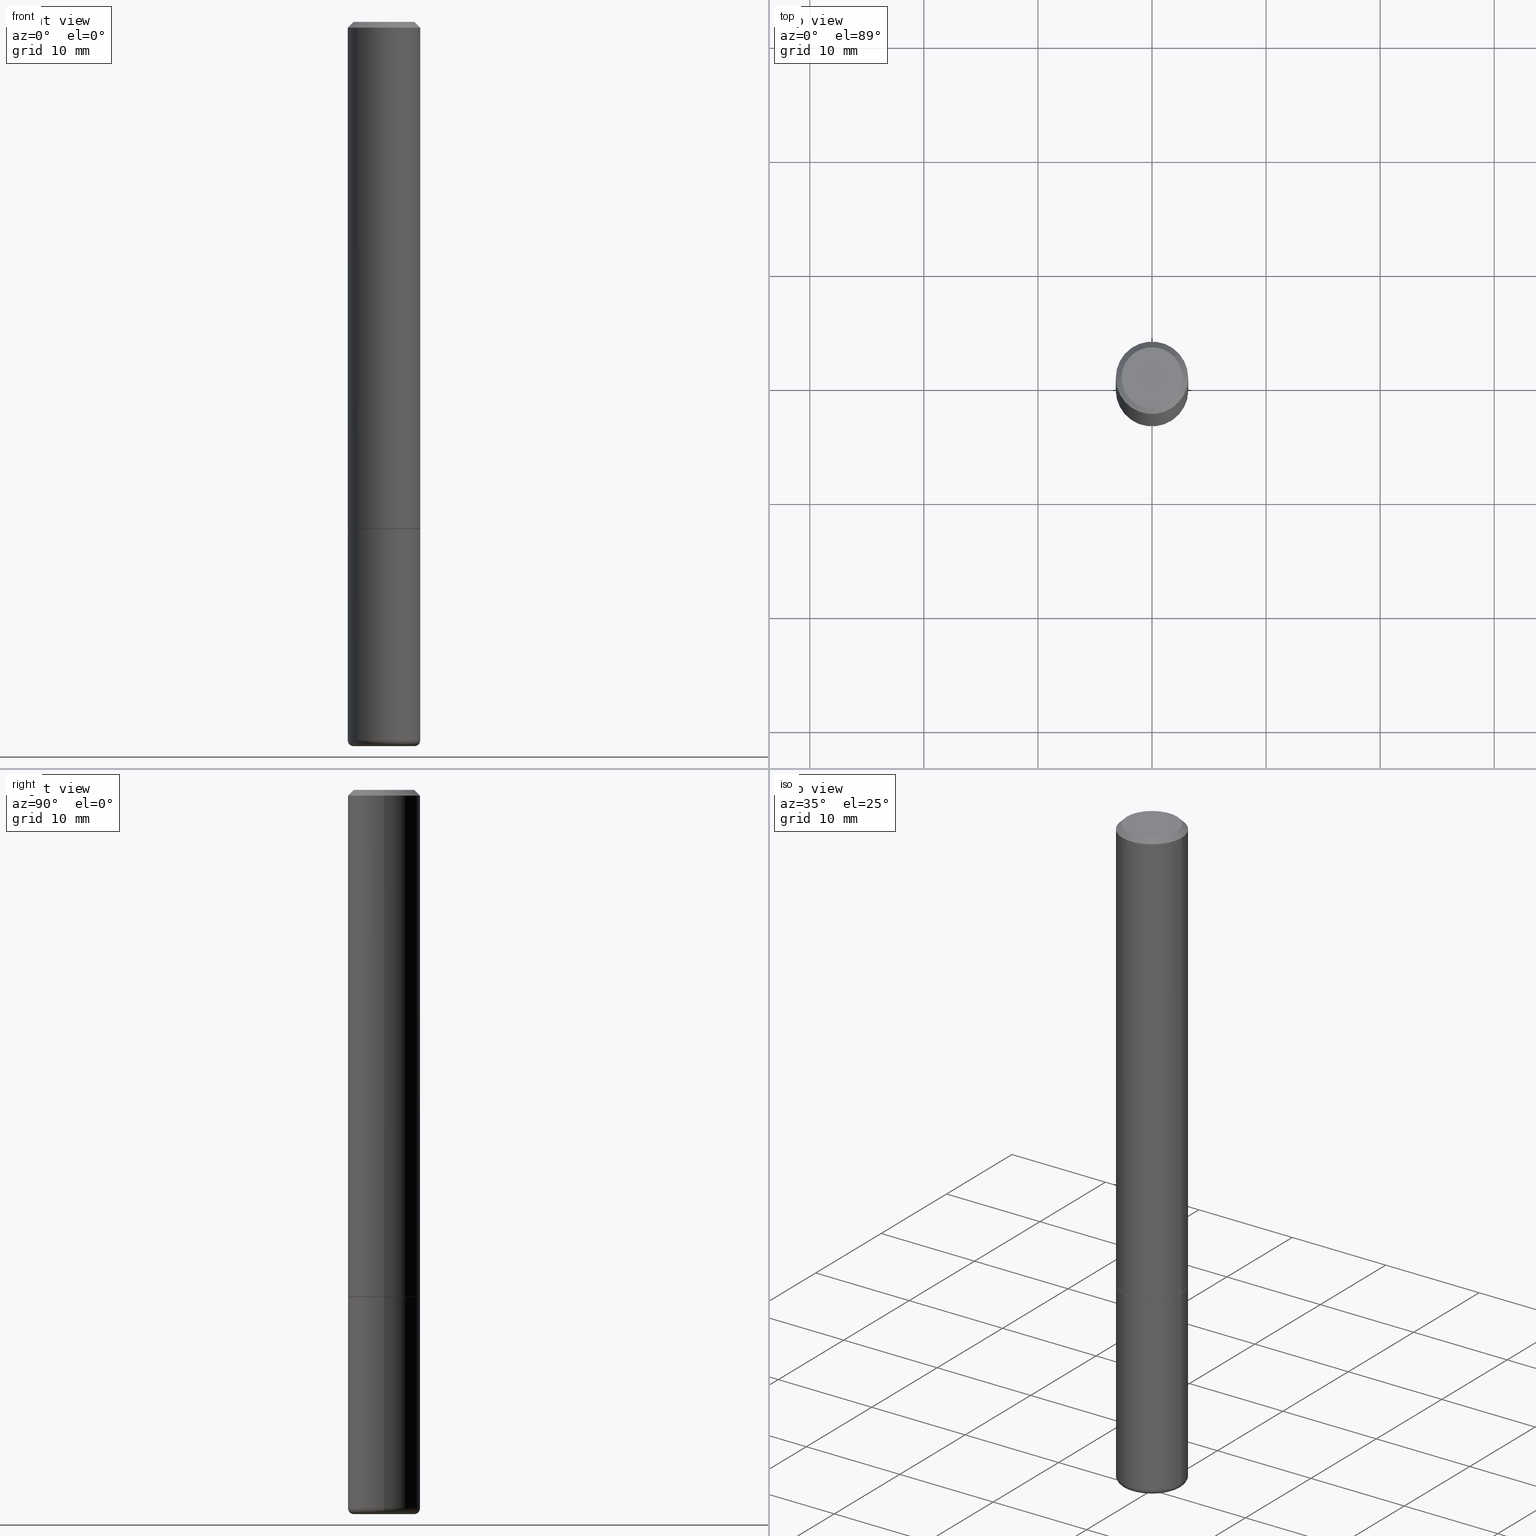
[diagram: canonical four-view strip — front | top / right | iso, engineering-drawing reading convention]
A machine part, canonical four-view strip (front | top / right | iso — engineering-drawing reading convention). The complete STEP part file that produces these views, byte-faithful:
ISO-10303-21;
HEADER;
FILE_DESCRIPTION (( 'STEP AP203' ),
    '1' );
FILE_NAME ('38021.STEP',
    '2023-03-22T20:13:57',
    ( '' ),
    ( '' ),
    'SwSTEP 2.0',
    'SolidWorks 2022',
    '' );
FILE_SCHEMA (( 'CONFIG_CONTROL_DESIGN' ));
ENDSEC;

DATA;
#1 = CARTESIAN_POINT ( 'NONE',  ( 0.000000000000000000, 0.000000000000000000, 0.000000000000000000 ) ) ;
#2 = DIRECTION ( 'NONE',  ( 1.000000000000000000, -6.982962677686266711E-15, 0.000000000000000000 ) ) ;
#3 = AXIS2_PLACEMENT_3D ( 'NONE', #326, #288, #373 ) ;
#4 = VERTEX_POINT ( 'NONE', #46 ) ;
#5 = CC_DESIGN_PERSON_AND_ORGANIZATION_ASSIGNMENT ( #285, #182, ( #99 ) ) ;
#6 = MANIFOLD_SOLID_BREP ( 'Body-Move/Copy2[2]', #78 ) ;
#7 = ORIENTED_EDGE ( 'NONE', *, *, #137, .T. ) ;
#8 = DATE_TIME_ROLE ( 'classification_date' ) ;
#9 = CIRCLE ( 'NONE', #126, 0.1250000000000002776 ) ;
#10 = EDGE_LOOP ( 'NONE', ( #343, #83 ) ) ;
#11 = DIRECTION ( 'NONE',  ( 7.105427357601001859E-15, 1.000000000000000000, -3.491481338843145583E-15 ) ) ;
#12 = ORIENTED_EDGE ( 'NONE', *, *, #283, .F. ) ;
#13 = COORDINATED_UNIVERSAL_TIME_OFFSET ( 5, 0, .BEHIND. ) ;
#14 = DIRECTION ( 'NONE',  ( 1.000000000000000000, -6.982962677686262766E-15, 0.000000000000000000 ) ) ;
#15 = EDGE_CURVE ( 'NONE', #69, #312, #394, .T. ) ;
#16 = DIRECTION ( 'NONE',  ( -2.445468806185136597E-29, 3.491481338843145583E-15, 1.000000000000000000 ) ) ;
#17 = ORIENTED_EDGE ( 'NONE', *, *, #332, .F. ) ;
#18 = DIRECTION ( 'NONE',  ( 1.000000000000000000, -6.982962677686262766E-15, 0.000000000000000000 ) ) ;
#19 = CONICAL_SURFACE ( 'NONE', #147, 0.1249999999999997641, 0.7853981633974471688 ) ;
#20 = DIRECTION ( 'NONE',  ( -0.7071067811865294761, 7.493145998870289474E-15, 0.7071067811865655584 ) ) ;
#21 = PLANE ( 'NONE',  #386 ) ;
#22 = PERSON_AND_ORGANIZATION ( #176, #395 ) ;
#23 = DIRECTION ( 'NONE',  ( -2.445468806185136597E-29, 3.491481338843145583E-15, 1.000000000000000000 ) ) ;
#24 = DIRECTION ( 'NONE',  ( -1.000000000000000000, 6.982962677686266711E-15, 0.000000000000000000 ) ) ;
#25 = CARTESIAN_POINT ( 'NONE',  ( -0.1249999999999999029, 8.881784197001245421E-16, -6.148668862818627323E-30 ) ) ;
#26 = DIRECTION ( 'NONE',  ( 1.000000000000000000, -6.982962677686271444E-15, 4.883557194083114022E-29 ) ) ;
#27 = CIRCLE ( 'NONE', #340, 0.1039532808751412185 ) ;
#28 = DIRECTION ( 'NONE',  ( -2.445468806185136597E-29, 3.491481338843145583E-15, 1.000000000000000000 ) ) ;
#29 = CARTESIAN_POINT ( 'NONE',  ( 7.332110811570563480E-16, 0.1049999999999997741, -3.644712843334792919E-16 ) ) ;
#30 = CARTESIAN_POINT ( 'NONE',  ( -0.1249999999999997641, 8.030407079339185615E-16, -0.02000000000000003858 ) ) ;
#31 = DIRECTION ( 'NONE',  ( 2.445468806185136597E-29, -3.491481338843145583E-15, -1.000000000000000000 ) ) ;
#32 = DIRECTION ( 'NONE',  ( -2.445468806185136597E-29, 3.491481338843145583E-15, 1.000000000000000000 ) ) ;
#33 = ORIENTED_EDGE ( 'NONE', *, *, #332, .T. ) ;
#34 = AXIS2_PLACEMENT_3D ( 'NONE', #1, #412, #273 ) ;
#35 = ORIENTED_EDGE ( 'NONE', *, *, #420, .T. ) ;
#36 = DIRECTION ( 'NONE',  ( -2.445468806185136597E-29, 3.491481338843145583E-15, 1.000000000000000000 ) ) ;
#37 = LOCAL_TIME ( 16, 13, 57.00000000000000000, #350 ) ;
#38 = EDGE_LOOP ( 'NONE', ( #194, #184, #7, #17 ) ) ;
#39 = APPROVAL_STATUS ( 'not_yet_approved' ) ;
#40 = ORIENTED_EDGE ( 'NONE', *, *, #349, .T. ) ;
#41 = CC_DESIGN_DATE_AND_TIME_ASSIGNMENT ( #146, #8, ( #241 ) ) ;
#42 = CALENDAR_DATE ( 2023, 22, 3 ) ;
#43 = AXIS2_PLACEMENT_3D ( 'NONE', #304, #435, #124 ) ;
#44 = APPROVAL_PERSON_ORGANIZATION ( #234, #315, #190 ) ;
#45 = TOROIDAL_SURFACE ( 'NONE', #358, 0.1050000000000000100, 0.02000000000000026409 ) ;
#46 = CARTESIAN_POINT ( 'NONE',  ( -0.1049999999999997741, 7.681258945454874055E-16, 4.268512490095161194E-18 ) ) ;
#47 = VERTEX_POINT ( 'NONE', #113 ) ;
#48 = CONICAL_SURFACE ( 'NONE', #131, 0.1239999999999999991, 0.7853981633974227439 ) ;
#49 = DATE_AND_TIME ( #361, #377 ) ;
#50 = VERTEX_POINT ( 'NONE', #236 ) ;
#51 = CARTESIAN_POINT ( 'NONE',  ( 6.064829667939290224E-29, -8.658969419407599059E-15, -2.480027409304907948 ) ) ;
#52 = ORIENTED_EDGE ( 'NONE', *, *, #306, .F. ) ;
#53 = FACE_OUTER_BOUND ( 'NONE', #348, .T. ) ;
#54 = PERSON_AND_ORGANIZATION ( #176, #395 ) ;
#55 = CARTESIAN_POINT ( 'NONE',  ( 4.279570410823989044E-29, -6.110092342975505460E-15, -1.750000000000000222 ) ) ;
#56 = FACE_OUTER_BOUND ( 'NONE', #111, .T. ) ;
#57 = CARTESIAN_POINT ( 'NONE',  ( 4.279570410823989044E-29, -6.110092342975505460E-15, -1.750000000000000222 ) ) ;
#58 = CARTESIAN_POINT ( 'NONE',  ( 4.279570410823989044E-29, -6.110092342975505460E-15, -1.750000000000000222 ) ) ;
#59 = EDGE_CURVE ( 'NONE', #249, #264, #429, .T. ) ;
#60 = PRODUCT ( '38021', '38021', '', ( #404 ) ) ;
#61 = DIRECTION ( 'NONE',  ( 1.000000000000000000, -6.982962677686266711E-15, 0.000000000000000000 ) ) ;
#62 = CARTESIAN_POINT ( 'NONE',  ( 4.248153437071916964E-19, -8.709681894338729074E-15, -2.494552039400148580 ) ) ;
#63 = DIRECTION ( 'NONE',  ( -2.445468806185136597E-29, 3.491481338843145583E-15, 1.000000000000000000 ) ) ;
#64 = CARTESIAN_POINT ( 'NONE',  ( -0.1039532808751412185, -7.880430930486362697E-15, -2.500000000000000000 ) ) ;
#65 = CARTESIAN_POINT ( 'NONE',  ( 0.1050000000000000100, -9.392180500564655802E-15, -2.480027409304907948 ) ) ;
#66 = UNCERTAINTY_MEASURE_WITH_UNIT (LENGTH_MEASURE( 1.000000000000000082E-05 ), #342, 'distance_accuracy_value', 'NONE');
#67 = VECTOR ( 'NONE', #92, 39.37007874015748143 ) ;
#68 = DIRECTION ( 'NONE',  ( 1.000000000000000000, -6.982962677686266711E-15, 4.876176775795935793E-29 ) ) ;
#69 = VERTEX_POINT ( 'NONE', #64 ) ;
#70 = ADVANCED_FACE ( 'NONE', ( #56 ), #207, .F. ) ;
#71 = VECTOR ( 'NONE', #417, 39.37007874015748143 ) ;
#72 = ORIENTED_EDGE ( 'NONE', *, *, #257, .F. ) ;
#73 = APPROVAL ( #118, 'UNSPECIFIED' ) ;
#74 = DIRECTION ( 'NONE',  ( 2.438088387897960049E-29, -3.491481338843145188E-15, -1.000000000000000000 ) ) ;
#75 = VERTEX_POINT ( 'NONE', #317 ) ;
#76 = ORIENTED_EDGE ( 'NONE', *, *, #150, .T. ) ;
#77 = CARTESIAN_POINT ( 'NONE',  ( -0.1250000000000001388, 8.881784197001262184E-16, -6.148668862818638533E-30 ) ) ;
#78 = CLOSED_SHELL ( 'NONE', ( #345, #399, #424, #419, #303, #351, #381, #103 ) ) ;
#79 = ORIENTED_EDGE ( 'NONE', *, *, #354, .F. ) ;
#80 = CIRCLE ( 'NONE', #43, 0.1039532808751412185 ) ;
#81 = AXIS2_PLACEMENT_3D ( 'NONE', #305, #16, #125 ) ;
#82 = CARTESIAN_POINT ( 'NONE',  ( 0.1039532808751412185, -9.454605227682013567E-15, -2.500000000000000000 ) ) ;
#83 = ORIENTED_EDGE ( 'NONE', *, *, #195, .F. ) ;
#84 = DIRECTION ( 'NONE',  ( 1.000000000000000000, -6.982962677686271444E-15, 4.883557194083114022E-29 ) ) ;
#85 = CARTESIAN_POINT ( 'NONE',  ( 0.1250000000000001388, -8.728703347107843249E-16, 6.095220969744926748E-30 ) ) ;
#86 = CIRCLE ( 'NONE', #227, 0.02000000000000026409 ) ;
#87 = CARTESIAN_POINT ( 'NONE',  ( 0.1239999999999999991, -6.975979715008602784E-15, -1.750000000000000222 ) ) ;
#88 = DIRECTION ( 'NONE',  ( 1.000000000000000000, -6.982962677686270655E-15, 0.000000000000000000 ) ) ;
#89 = CC_DESIGN_PERSON_AND_ORGANIZATION_ASSIGNMENT ( #22, #438, ( #60 ) ) ;
#90 = DIRECTION ( 'NONE',  ( -2.445468806185136877E-29, 3.491481338843145188E-15, 1.000000000000000000 ) ) ;
#91 = APPLICATION_CONTEXT ( 'configuration controlled 3d designs of mechanical parts and assemblies' ) ;
#92 = DIRECTION ( 'NONE',  ( -0.7071067811865466846, 2.468850131082247989E-15, -0.7071067811865483499 ) ) ;
#93 = FACE_OUTER_BOUND ( 'NONE', #413, .T. ) ;
#94 = CARTESIAN_POINT ( 'NONE',  ( -1.043851414335219820E-46, 1.490343170380447200E-32, 4.268512490100411279E-18 ) ) ;
#95 = AXIS2_PLACEMENT_3D ( 'NONE', #196, #440, #18 ) ;
#96 = PLANE ( 'NONE',  #275 ) ;
#97 = DIRECTION ( 'NONE',  ( 1.000000000000000000, -6.982962677686239889E-15, 0.000000000000000000 ) ) ;
#98 = ORIENTED_EDGE ( 'NONE', *, *, #367, .T. ) ;
#99 = PRODUCT_DEFINITION_FORMATION_WITH_SPECIFIED_SOURCE ( 'ANY', '', #60, .NOT_KNOWN. ) ;
#100 = VERTEX_POINT ( 'NONE', #319 ) ;
#101 = CARTESIAN_POINT ( 'NONE',  ( 0.000000000000000000, 0.000000000000000000, 0.000000000000000000 ) ) ;
#102 = ORIENTED_EDGE ( 'NONE', *, *, #15, .T. ) ;
#103 = ADVANCED_FACE ( 'NONE', ( #307 ), #96, .F. ) ;
#104 = ORIENTED_EDGE ( 'NONE', *, *, #391, .T. ) ;
#105 = PERSON_AND_ORGANIZATION_ROLE ( 'classification_officer' ) ;
#106 = SECURITY_CLASSIFICATION_LEVEL ( 'unclassified' ) ;
#107 = ORIENTED_EDGE ( 'NONE', *, *, #117, .T. ) ;
#108 = AXIS2_PLACEMENT_3D ( 'NONE', #169, #437, #127 ) ;
#109 = DATE_AND_TIME ( #421, #322 ) ;
#110 = LINE ( 'NONE', #262, #230 ) ;
#111 = EDGE_LOOP ( 'NONE', ( #428, #33 ) ) ;
#112 = CARTESIAN_POINT ( 'NONE',  ( 6.064829667939290224E-29, -8.658969419407599059E-15, -2.480027409304907948 ) ) ;
#113 = CARTESIAN_POINT ( 'NONE',  ( -0.1249999999999997641, 8.030407079339185615E-16, -0.02000000000000003858 ) ) ;
#114 = EDGE_LOOP ( 'NONE', ( #76, #327, #79, #314 ) ) ;
#115 = CARTESIAN_POINT ( 'NONE',  ( 0.1250000000000000278, -6.979471196347445792E-15, -1.749000000000000110 ) ) ;
#116 = VECTOR ( 'NONE', #369, 39.37007874015748143 ) ;
#117 = EDGE_CURVE ( 'NONE', #287, #69, #110, .T. ) ;
#118 = APPROVAL_STATUS ( 'not_yet_approved' ) ;
#119 = LINE ( 'NONE', #128, #172 ) ;
#120 = ORIENTED_EDGE ( 'NONE', *, *, #137, .F. ) ;
#121 = CARTESIAN_POINT ( 'NONE',  ( 6.064829667939290224E-29, -8.658969419407599059E-15, -2.480027409304907948 ) ) ;
#122 = DIRECTION ( 'NONE',  ( -2.445468806185136597E-29, 3.491481338843145583E-15, 1.000000000000000000 ) ) ;
#123 = CC_DESIGN_PERSON_AND_ORGANIZATION_ASSIGNMENT ( #254, #105, ( #241 ) ) ;
#124 = DIRECTION ( 'NONE',  ( 1.000000000000000000, -6.982962677686269077E-15, 0.000000000000000000 ) ) ;
#125 = DIRECTION ( 'NONE',  ( 1.000000000000000000, -6.982962677686266711E-15, 4.876176775795935793E-29 ) ) ;
#126 = AXIS2_PLACEMENT_3D ( 'NONE', #296, #237, #432 ) ;
#127 = DIRECTION ( 'NONE',  ( -1.000000000000000000, 6.982962677686266711E-15, 0.000000000000000000 ) ) ;
#128 = CARTESIAN_POINT ( 'NONE',  ( -0.1239999999999999991, -5.229019350632981236E-15, -1.750000000000000222 ) ) ;
#129 = DIMENSIONAL_EXPONENTS ( 1.000000000000000000, 0.000000000000000000, 0.000000000000000000, 0.000000000000000000, 0.000000000000000000, 0.000000000000000000, 0.000000000000000000 ) ;
#130 = FACE_OUTER_BOUND ( 'NONE', #38, .T. ) ;
#131 = AXIS2_PLACEMENT_3D ( 'NONE', #57, #170, #374 ) ;
#132 = CIRCLE ( 'NONE', #346, 0.1249999999999997641 ) ;
#133 = CC_DESIGN_APPROVAL ( #315, ( #229 ) ) ;
#134 = CARTESIAN_POINT ( 'NONE',  ( 0.1049999999999997741, -8.238720831321559881E-16, 4.268512490105855498E-18 ) ) ;
#135 = VERTEX_POINT ( 'NONE', #82 ) ;
#136 = ADVANCED_FACE ( 'NONE', ( #235 ), #188, .F. ) ;
#137 = EDGE_CURVE ( 'NONE', #75, #249, #156, .T. ) ;
#138 = EDGE_LOOP ( 'NONE', ( #360, #107, #218 ) ) ;
#139 = CC_DESIGN_DATE_AND_TIME_ASSIGNMENT ( #365, #333, ( #229 ) ) ;
#140 = CLOSED_SHELL ( 'NONE', ( #136, #311, #178, #70, #270, #318, #247 ) ) ;
#141 = DATE_AND_TIME ( #42, #161 ) ;
#142 = APPLICATION_PROTOCOL_DEFINITION ( 'international standard', 'config_control_design', 1994, #418 ) ;
#143 = EDGE_CURVE ( 'NONE', #75, #312, #9, .T. ) ;
#144 = EDGE_LOOP ( 'NONE', ( #258, #223, #278, #52 ) ) ;
#145 = EDGE_CURVE ( 'NONE', #274, #100, #119, .T. ) ;
#146 = DATE_AND_TIME ( #282, #37 ) ;
#147 = AXIS2_PLACEMENT_3D ( 'NONE', #157, #31, #213 ) ;
#148 = EDGE_LOOP ( 'NONE', ( #392, #104, #216, #120 ) ) ;
#149 = COORDINATED_UNIVERSAL_TIME_OFFSET ( 5, 0, .BEHIND. ) ;
#150 = EDGE_CURVE ( 'NONE', #192, #274, #371, .T. ) ;
#151 = CIRCLE ( 'NONE', #95, 0.1250000000000000000 ) ;
#152 = PERSON_AND_ORGANIZATION ( #176, #395 ) ;
#153 = DIRECTION ( 'NONE',  ( -2.438088387897960049E-29, 3.491481338843145188E-15, 1.000000000000000000 ) ) ;
#154 = EDGE_LOOP ( 'NONE', ( #293, #425, #252, #363 ) ) ;
#155 = COORDINATED_UNIVERSAL_TIME_OFFSET ( 5, 0, .BEHIND. ) ;
#156 = LINE ( 'NONE', #85, #376 ) ;
#157 = CARTESIAN_POINT ( 'NONE',  ( 4.890937612370282792E-31, -6.982962677686303935E-17, -0.02000000000000003858 ) ) ;
#158 = ORIENTED_EDGE ( 'NONE', *, *, #384, .F. ) ;
#159 = DIRECTION ( 'NONE',  ( 0.000000000000000000, 0.000000000000000000, 1.000000000000000000 ) ) ;
#160 = CARTESIAN_POINT ( 'NONE',  ( 4.279570410823989044E-29, -6.110092342975505460E-15, -1.750000000000000222 ) ) ;
#161 = LOCAL_TIME ( 16, 13, 57.00000000000000000, #149 ) ;
#162 = DIRECTION ( 'NONE',  ( 1.000000000000000000, -6.982962677686270655E-15, 0.000000000000000000 ) ) ;
#163 = LINE ( 'NONE', #202, #439 ) ;
#164 = APPLICATION_PROTOCOL_DEFINITION ( 'international standard', 'config_control_design', 1994, #91 ) ;
#165 = LINE ( 'NONE', #87, #253 ) ;
#166 = DIRECTION ( 'NONE',  ( -2.445468806185136597E-29, 3.491481338843145583E-15, 1.000000000000000000 ) ) ;
#167 = DIRECTION ( 'NONE',  ( -1.000000000000000000, 6.982962677686265922E-15, -4.876176775795935793E-29 ) ) ;
#168 = EDGE_CURVE ( 'NONE', #4, #47, #301, .T. ) ;
#169 = CARTESIAN_POINT ( 'NONE',  ( 1.023786486538663119E-27, -1.461695771243838175E-13, -41.86463077955762913 ) ) ;
#170 = DIRECTION ( 'NONE',  ( -2.445468806185136597E-29, 3.491481338843145583E-15, 1.000000000000000000 ) ) ;
#171 = PRODUCT_DEFINITION_SHAPE ( 'NONE', 'NONE',  #229 ) ;
#172 = VECTOR ( 'NONE', #20, 39.37007874015748143 ) ;
#173 = APPROVAL_PERSON_ORGANIZATION ( #280, #211, #353 ) ;
#174 = CARTESIAN_POINT ( 'NONE',  ( 4.890937612370282792E-31, -6.982962677686303935E-17, -0.02000000000000003858 ) ) ;
#175 = FACE_OUTER_BOUND ( 'NONE', #279, .T. ) ;
#176 = PERSON ( 'UNSPECIFIED', 'UNSPECIFIED', 'UNSPECIFIED', ('UNSPECIFIED'), ('UNSPECIFIED'), ('UNSPECIFIED') ) ;
#177 = CARTESIAN_POINT ( 'NONE',  ( 4.277124942017804562E-29, -6.106600861636661664E-15, -1.749000000000000110 ) ) ;
#178 = ADVANCED_FACE ( 'NONE', ( #434 ), #242, .T. ) ;
#179 = VECTOR ( 'NONE', #191, 39.37007874015748143 ) ;
#180 = CYLINDRICAL_SURFACE ( 'NONE', #34, 0.1250000000000001388 ) ;
#181 = COORDINATED_UNIVERSAL_TIME_OFFSET ( 5, 0, .BEHIND. ) ;
#182 = PERSON_AND_ORGANIZATION_ROLE ( 'creator' ) ;
#183 = CARTESIAN_POINT ( 'NONE',  ( 0.1249999999999997641, -9.273918764983027713E-16, -0.02000000000000003858 ) ) ;
#184 = ORIENTED_EDGE ( 'NONE', *, *, #384, .T. ) ;
#185 = ORIENTED_EDGE ( 'NONE', *, *, #240, .T. ) ;
#186 = EDGE_CURVE ( 'NONE', #192, #347, #165, .T. ) ;
#187 = ORIENTED_EDGE ( 'NONE', *, *, #354, .T. ) ;
#188 = CONICAL_SURFACE ( 'NONE', #331, 751.2258538476612557, 1.518436449235073260 ) ;
#189 = CIRCLE ( 'NONE', #246, 0.1250000000000000278 ) ;
#190 = APPROVAL_ROLE ( '' ) ;
#191 = DIRECTION ( 'NONE',  ( -2.445468806185136877E-29, 3.491481338843145188E-15, 1.000000000000000000 ) ) ;
#192 = VERTEX_POINT ( 'NONE', #238 ) ;
#193 = CYLINDRICAL_SURFACE ( 'NONE', #81, 0.1249999999999999029 ) ;
#194 = ORIENTED_EDGE ( 'NONE', *, *, #391, .F. ) ;
#195 = EDGE_CURVE ( 'NONE', #274, #192, #430, .T. ) ;
#196 = CARTESIAN_POINT ( 'NONE',  ( 4.279570410823989044E-29, -6.110092342975505460E-15, -1.750000000000000222 ) ) ;
#197 = DIRECTION ( 'NONE',  ( -0.9986295347545742773, 6.790662755453664522E-15, -0.05233595624293731902 ) ) ;
#198 = DIRECTION ( 'NONE',  ( 1.000000000000000000, 0.000000000000000000, 0.000000000000000000 ) ) ;
#199 = CC_DESIGN_APPROVAL ( #73, ( #99 ) ) ;
#200 = CONICAL_SURFACE ( 'NONE', #108, 751.2258538476612557, 1.518436449235073260 ) ;
#201 = DIRECTION ( 'NONE',  ( 2.445468806185136597E-29, -3.491481338843145583E-15, -1.000000000000000000 ) ) ;
#202 = CARTESIAN_POINT ( 'NONE',  ( 0.1249999999999999029, -8.728703347107826486E-16, 6.095220969744914837E-30 ) ) ;
#203 = DIRECTION ( 'NONE',  ( -2.445468806185136597E-29, 3.491481338843145583E-15, 1.000000000000000000 ) ) ;
#204 = DIRECTION ( 'NONE',  ( 1.000000000000000000, -6.982962677686265922E-15, 4.876176775795935793E-29 ) ) ;
#205 = AXIS2_PLACEMENT_3D ( 'NONE', #94, #215, #277 ) ;
#206 = CARTESIAN_POINT ( 'NONE',  ( 8.728703347108260359E-16, 0.1249999999999938799, -1.750000000000000666 ) ) ;
#207 = PLANE ( 'NONE',  #219 ) ;
#208 = CARTESIAN_POINT ( 'NONE',  ( 0.000000000000000000, 0.000000000000000000, 0.000000000000000000 ) ) ;
#209 = LENGTH_MEASURE_WITH_UNIT ( LENGTH_MEASURE( 0.02539999999999999897 ), #276 );
#210 = DIRECTION ( 'NONE',  ( -6.982962677686266711E-15, -1.000000000000000000, 3.491481338843145583E-15 ) ) ;
#211 = APPROVAL ( #39, 'UNSPECIFIED' ) ;
#212 = APPROVAL_PERSON_ORGANIZATION ( #54, #73, #401 ) ;
#213 = DIRECTION ( 'NONE',  ( -1.000000000000000000, 6.982962677686266711E-15, 0.000000000000000000 ) ) ;
#214 = DIRECTION ( 'NONE',  ( -1.000000000000000000, 6.982962677686266711E-15, 0.000000000000000000 ) ) ;
#215 = DIRECTION ( 'NONE',  ( -2.445468806185136597E-29, 3.491481338843145583E-15, 1.000000000000000000 ) ) ;
#216 = ORIENTED_EDGE ( 'NONE', *, *, #59, .F. ) ;
#217 = AXIS2_PLACEMENT_3D ( 'NONE', #441, #268, #402 ) ;
#218 = ORIENTED_EDGE ( 'NONE', *, *, #225, .F. ) ;
#219 = AXIS2_PLACEMENT_3D ( 'NONE', #206, #408, #167 ) ;
#220 = CC_DESIGN_PERSON_AND_ORGANIZATION_ASSIGNMENT ( #423, #316, ( #99 ) ) ;
#221 = AXIS2_PLACEMENT_3D ( 'NONE', #372, #269, #61 ) ;
#222 = AXIS2_PLACEMENT_3D ( 'NONE', #112, #122, #88 ) ;
#223 = ORIENTED_EDGE ( 'NONE', *, *, #195, .T. ) ;
#224 = ORIENTED_EDGE ( 'NONE', *, *, #240, .F. ) ;
#225 = EDGE_CURVE ( 'NONE', #135, #69, #80, .T. ) ;
#226 = TOROIDAL_SURFACE ( 'NONE', #390, 0.1050000000000000100, 0.02000000000000026409 ) ;
#227 = AXIS2_PLACEMENT_3D ( 'NONE', #65, #210, #97 ) ;
#228 = ORIENTED_EDGE ( 'NONE', *, *, #117, .F. ) ;
#229 = PRODUCT_DEFINITION ( 'UNKNOWN', '', #99, #341 ) ;
#230 = VECTOR ( 'NONE', #197, 39.37007874015748854 ) ;
#231 = CARTESIAN_POINT ( 'NONE',  ( 4.279570410823989044E-29, -6.110092342975505460E-15, -1.750000000000000222 ) ) ;
#232 = AXIS2_PLACEMENT_3D ( 'NONE', #58, #203, #334 ) ;
#233 = CONICAL_SURFACE ( 'NONE', #431, 0.1249999999999997641, 0.7853981633974471688 ) ;
#234 = PERSON_AND_ORGANIZATION ( #176, #395 ) ;
#235 = FACE_OUTER_BOUND ( 'NONE', #320, .T. ) ;
#236 = CARTESIAN_POINT ( 'NONE',  ( 0.1249999999999997641, -9.273918764983027713E-16, -0.02000000000000003858 ) ) ;
#237 = DIRECTION ( 'NONE',  ( -2.445468806185136597E-29, 3.491481338843145583E-15, 1.000000000000000000 ) ) ;
#238 = CARTESIAN_POINT ( 'NONE',  ( 0.1239999999999999991, -6.975979715008602784E-15, -1.750000000000000222 ) ) ;
#239 = LINE ( 'NONE', #77, #116 ) ;
#240 = EDGE_CURVE ( 'NONE', #50, #47, #355, .T. ) ;
#241 = SECURITY_CLASSIFICATION ( '', '', #106 ) ;
#242 = CYLINDRICAL_SURFACE ( 'NONE', #217, 0.1250000000000001388 ) ;
#243 = CIRCLE ( 'NONE', #205, 0.1049999999999997741 ) ;
#244 = CC_DESIGN_PERSON_AND_ORGANIZATION_ASSIGNMENT ( #152, #426, ( #229 ) ) ;
#245 = AXIS2_PLACEMENT_3D ( 'NONE', #231, #325, #14 ) ;
#246 = AXIS2_PLACEMENT_3D ( 'NONE', #330, #166, #427 ) ;
#247 = ADVANCED_FACE ( 'NONE', ( #337 ), #200, .F. ) ;
#248 = CARTESIAN_POINT ( 'NONE',  ( -0.1250000000000000000, -6.496352461491424661E-15, -1.750000000000000222 ) ) ;
#249 = VERTEX_POINT ( 'NONE', #272 ) ;
#250 = DIRECTION ( 'NONE',  ( 1.000000000000000000, -6.982962677686269077E-15, 0.000000000000000000 ) ) ;
#251 = ORIENTED_EDGE ( 'NONE', *, *, #283, .T. ) ;
#252 = ORIENTED_EDGE ( 'NONE', *, *, #168, .T. ) ;
#253 = VECTOR ( 'NONE', #368, 39.37007874015748143 ) ;
#254 = PERSON_AND_ORGANIZATION ( #176, #395 ) ;
#255 =( GEOMETRIC_REPRESENTATION_CONTEXT ( 3 ) GLOBAL_UNCERTAINTY_ASSIGNED_CONTEXT ( ( #66 ) ) GLOBAL_UNIT_ASSIGNED_CONTEXT ( ( #342, #344, #380 ) ) REPRESENTATION_CONTEXT ( 'NONE', 'WORKASPACE' ) );
#256 = APPROVAL_DATE_TIME ( #109, #211 ) ;
#257 = EDGE_CURVE ( 'NONE', #47, #50, #132, .T. ) ;
#258 = ORIENTED_EDGE ( 'NONE', *, *, #145, .F. ) ;
#259 = EDGE_CURVE ( 'NONE', #135, #75, #86, .T. ) ;
#260 = CARTESIAN_POINT ( 'NONE',  ( -0.1050000000000000100, -7.912899546859493990E-15, -2.480027409304907948 ) ) ;
#261 = APPROVAL_DATE_TIME ( #141, #73 ) ;
#262 = CARTESIAN_POINT ( 'NONE',  ( -4.248153435851846603E-19, -8.709681894338729074E-15, -2.494552039400148580 ) ) ;
#263 = EDGE_LOOP ( 'NONE', ( #187, #397, #224, #382 ) ) ;
#264 = VERTEX_POINT ( 'NONE', #248 ) ;
#265 = CC_DESIGN_SECURITY_CLASSIFICATION ( #241, ( #99 ) ) ;
#266 = VERTEX_POINT ( 'NONE', #134 ) ;
#267 = AXIS2_PLACEMENT_3D ( 'NONE', #177, #310, #250 ) ;
#268 = DIRECTION ( 'NONE',  ( -2.445468806185136597E-29, 3.491481338843145583E-15, 1.000000000000000000 ) ) ;
#269 = DIRECTION ( 'NONE',  ( -2.445468806185136597E-29, 3.491481338843145583E-15, 1.000000000000000000 ) ) ;
#270 = ADVANCED_FACE ( 'NONE', ( #130 ), #180, .T. ) ;
#271 = DIRECTION ( 'NONE',  ( -2.445468806185136597E-29, 3.491481338843145583E-15, 1.000000000000000000 ) ) ;
#272 = CARTESIAN_POINT ( 'NONE',  ( 0.1250000000000000000, -6.982962677686288010E-15, -1.750000000000000222 ) ) ;
#273 = DIRECTION ( 'NONE',  ( 1.000000000000000000, -6.982962677686266711E-15, 4.876176775795935793E-29 ) ) ;
#274 = VERTEX_POINT ( 'NONE', #406 ) ;
#275 = AXIS2_PLACEMENT_3D ( 'NONE', #29, #74, #286 ) ;
#276 =( LENGTH_UNIT ( ) NAMED_UNIT ( * ) SI_UNIT ( $, .METRE. ) );
#277 = DIRECTION ( 'NONE',  ( 1.000000000000000000, -6.982962677686265922E-15, 4.876206205277404679E-29 ) ) ;
#278 = ORIENTED_EDGE ( 'NONE', *, *, #186, .T. ) ;
#279 = EDGE_LOOP ( 'NONE', ( #359, #102, #298, #289 ) ) ;
#280 = PERSON_AND_ORGANIZATION ( #176, #395 ) ;
#281 = LINE ( 'NONE', #183, #71 ) ;
#282 = CALENDAR_DATE ( 2023, 22, 3 ) ;
#283 = EDGE_CURVE ( 'NONE', #266, #4, #243, .T. ) ;
#284 = ORIENTED_EDGE ( 'NONE', *, *, #306, .T. ) ;
#285 = PERSON_AND_ORGANIZATION ( #176, #395 ) ;
#286 = DIRECTION ( 'NONE',  ( -1.000000000000000000, 6.982962677686265922E-15, -4.876176775795935793E-29 ) ) ;
#287 = VERTEX_POINT ( 'NONE', #410 ) ;
#288 = DIRECTION ( 'NONE',  ( -2.445468806185136597E-29, 3.491481338843145583E-15, 1.000000000000000000 ) ) ;
#289 = ORIENTED_EDGE ( 'NONE', *, *, #259, .F. ) ;
#290 = CIRCLE ( 'NONE', #267, 0.1250000000000000278 ) ;
#291 = APPROVAL_DATE_TIME ( #49, #315 ) ;
#292 = LINE ( 'NONE', #62, #308 ) ;
#293 = ORIENTED_EDGE ( 'NONE', *, *, #420, .F. ) ;
#294 = DIRECTION ( 'NONE',  ( 1.000000000000000000, -6.982962677686270655E-15, 0.000000000000000000 ) ) ;
#295 = MANIFOLD_SOLID_BREP ( 'Body-Move/Copy2[1]', #140 ) ;
#296 = CARTESIAN_POINT ( 'NONE',  ( 6.064829667939290224E-29, -8.658969419407599059E-15, -2.480027409304907948 ) ) ;
#297 = FACE_OUTER_BOUND ( 'NONE', #263, .T. ) ;
#298 = ORIENTED_EDGE ( 'NONE', *, *, #143, .F. ) ;
#299 = LOCAL_TIME ( 16, 13, 57.00000000000000000, #155 ) ;
#300 = DIRECTION ( 'NONE',  ( 1.000000000000000000, -6.982962677686269077E-15, 0.000000000000000000 ) ) ;
#301 = LINE ( 'NONE', #30, #67 ) ;
#302 = CARTESIAN_POINT ( 'NONE',  ( 4.279570410823989044E-29, -6.110092342975505460E-15, -1.750000000000000222 ) ) ;
#303 = ADVANCED_FACE ( 'NONE', ( #339 ), #379, .T. ) ;
#304 = CARTESIAN_POINT ( 'NONE',  ( 6.113672015462842613E-29, -8.728703347107864943E-15, -2.500000000000000000 ) ) ;
#305 = CARTESIAN_POINT ( 'NONE',  ( 0.000000000000000000, 0.000000000000000000, 0.000000000000000000 ) ) ;
#306 = EDGE_CURVE ( 'NONE', #100, #347, #290, .T. ) ;
#307 = FACE_OUTER_BOUND ( 'NONE', #415, .T. ) ;
#308 = VECTOR ( 'NONE', #436, 39.37007874015748854 ) ;
#309 = DIRECTION ( 'NONE',  ( 2.445468806185136597E-29, -3.491481338843145583E-15, -1.000000000000000000 ) ) ;
#310 = DIRECTION ( 'NONE',  ( -2.445468806185136597E-29, 3.491481338843145583E-15, 1.000000000000000000 ) ) ;
#311 = ADVANCED_FACE ( 'NONE', ( #175 ), #45, .T. ) ;
#312 = VERTEX_POINT ( 'NONE', #442 ) ;
#313 = AXIS2_PLACEMENT_3D ( 'NONE', #55, #329, #162 ) ;
#314 = ORIENTED_EDGE ( 'NONE', *, *, #186, .F. ) ;
#315 = APPROVAL ( #324, 'UNSPECIFIED' ) ;
#316 = PERSON_AND_ORGANIZATION_ROLE ( 'design_supplier' ) ;
#317 = CARTESIAN_POINT ( 'NONE',  ( 0.1250000000000002776, -9.531839754118383976E-15, -2.480027409304907948 ) ) ;
#318 = ADVANCED_FACE ( 'NONE', ( #53 ), #226, .T. ) ;
#319 = CARTESIAN_POINT ( 'NONE',  ( -0.1250000000000000278, -2.200036824506634488E-15, -1.749000000000000110 ) ) ;
#320 = EDGE_LOOP ( 'NONE', ( #228, #422, #383 ) ) ;
#321 = ORIENTED_EDGE ( 'NONE', *, *, #366, .T. ) ;
#322 = LOCAL_TIME ( 16, 13, 57.00000000000000000, #181 ) ;
#323 = DIRECTION ( 'NONE',  ( -1.000000000000000000, 7.105427357601027102E-15, 0.000000000000000000 ) ) ;
#324 = APPROVAL_STATUS ( 'not_yet_approved' ) ;
#325 = DIRECTION ( 'NONE',  ( -2.445468806185136597E-29, 3.491481338843145583E-15, 1.000000000000000000 ) ) ;
#326 = CARTESIAN_POINT ( 'NONE',  ( -1.043851414335219820E-46, 1.490343170380447200E-32, 4.268512490100411279E-18 ) ) ;
#327 = ORIENTED_EDGE ( 'NONE', *, *, #145, .T. ) ;
#328 = CALENDAR_DATE ( 2023, 22, 3 ) ;
#329 = DIRECTION ( 'NONE',  ( -2.445468806185136597E-29, 3.491481338843145583E-15, 1.000000000000000000 ) ) ;
#330 = CARTESIAN_POINT ( 'NONE',  ( 4.277124942017804562E-29, -6.106600861636661664E-15, -1.749000000000000110 ) ) ;
#331 = AXIS2_PLACEMENT_3D ( 'NONE', #338, #201, #24 ) ;
#332 = EDGE_CURVE ( 'NONE', #264, #249, #151, .T. ) ;
#333 = DATE_TIME_ROLE ( 'creation_date' ) ;
#334 = DIRECTION ( 'NONE',  ( 1.000000000000000000, -6.982962677686270655E-15, 0.000000000000000000 ) ) ;
#335 = DIRECTION ( 'NONE',  ( -2.445468806185136877E-29, 3.491481338843145188E-15, 1.000000000000000000 ) ) ;
#336 = FACE_OUTER_BOUND ( 'NONE', #114, .T. ) ;
#337 = FACE_OUTER_BOUND ( 'NONE', #138, .T. ) ;
#338 = CARTESIAN_POINT ( 'NONE',  ( 1.023786486538663119E-27, -1.461695771243838175E-13, -41.86463077955762913 ) ) ;
#339 = FACE_OUTER_BOUND ( 'NONE', #357, .T. ) ;
#340 = AXIS2_PLACEMENT_3D ( 'NONE', #398, #23, #300 ) ;
#341 = DESIGN_CONTEXT ( 'detailed design', #91, 'design' ) ;
#342 =( CONVERSION_BASED_UNIT ( 'INCH', #209 ) LENGTH_UNIT ( ) NAMED_UNIT ( #129 ) );
#343 = ORIENTED_EDGE ( 'NONE', *, *, #150, .F. ) ;
#344 =( NAMED_UNIT ( * ) PLANE_ANGLE_UNIT ( ) SI_UNIT ( $, .RADIAN. ) );
#345 = ADVANCED_FACE ( 'NONE', ( #336 ), #352, .T. ) ;
#346 = AXIS2_PLACEMENT_3D ( 'NONE', #405, #36, #2 ) ;
#347 = VERTEX_POINT ( 'NONE', #115 ) ;
#348 = EDGE_LOOP ( 'NONE', ( #389, #40, #387, #158 ) ) ;
#349 = EDGE_CURVE ( 'NONE', #69, #135, #27, .T. ) ;
#350 = COORDINATED_UNIVERSAL_TIME_OFFSET ( 5, 0, .BEHIND. ) ;
#351 = ADVANCED_FACE ( 'NONE', ( #364 ), #48, .T. ) ;
#352 = CONICAL_SURFACE ( 'NONE', #407, 0.1239999999999999991, 0.7853981633974227439 ) ;
#353 = APPROVAL_ROLE ( '' ) ;
#354 = EDGE_CURVE ( 'NONE', #347, #100, #189, .T. ) ;
#355 = CIRCLE ( 'NONE', #221, 0.1249999999999997641 ) ;
#356 = AXIS2_PLACEMENT_3D ( 'NONE', #208, #159, #198 ) ;
#357 = EDGE_LOOP ( 'NONE', ( #433, #284, #321, #72 ) ) ;
#358 = AXIS2_PLACEMENT_3D ( 'NONE', #51, #271, #84 ) ;
#359 = ORIENTED_EDGE ( 'NONE', *, *, #225, .T. ) ;
#360 = ORIENTED_EDGE ( 'NONE', *, *, #378, .F. ) ;
#361 = CALENDAR_DATE ( 2023, 22, 3 ) ;
#362 = FACE_OUTER_BOUND ( 'NONE', #10, .T. ) ;
#363 = ORIENTED_EDGE ( 'NONE', *, *, #257, .T. ) ;
#364 = FACE_OUTER_BOUND ( 'NONE', #144, .T. ) ;
#365 = DATE_AND_TIME ( #328, #299 ) ;
#366 = EDGE_CURVE ( 'NONE', #347, #50, #163, .T. ) ;
#367 = EDGE_CURVE ( 'NONE', #4, #266, #370, .T. ) ;
#368 = DIRECTION ( 'NONE',  ( 0.7071067811865294761, -2.468850131082068128E-15, 0.7071067811865655584 ) ) ;
#369 = DIRECTION ( 'NONE',  ( -2.445468806185136877E-29, 3.491481338843145188E-15, 1.000000000000000000 ) ) ;
#370 = CIRCLE ( 'NONE', #3, 0.1049999999999997741 ) ;
#371 = CIRCLE ( 'NONE', #313, 0.1239999999999999991 ) ;
#372 = CARTESIAN_POINT ( 'NONE',  ( 4.890937612370282792E-31, -6.982962677686303935E-17, -0.02000000000000003858 ) ) ;
#373 = DIRECTION ( 'NONE',  ( 1.000000000000000000, -6.982962677686265922E-15, 4.876206205277404679E-29 ) ) ;
#374 = DIRECTION ( 'NONE',  ( 1.000000000000000000, -6.982962677686270655E-15, 0.000000000000000000 ) ) ;
#375 = AXIS2_PLACEMENT_3D ( 'NONE', #260, #11, #323 ) ;
#376 = VECTOR ( 'NONE', #90, 39.37007874015748143 ) ;
#377 = LOCAL_TIME ( 16, 13, 57.00000000000000000, #13 ) ;
#378 = EDGE_CURVE ( 'NONE', #287, #135, #292, .T. ) ;
#379 = CYLINDRICAL_SURFACE ( 'NONE', #414, 0.1249999999999999029 ) ;
#380 =( NAMED_UNIT ( * ) SI_UNIT ( $, .STERADIAN. ) SOLID_ANGLE_UNIT ( ) );
#381 = ADVANCED_FACE ( 'NONE', ( #362 ), #21, .F. ) ;
#382 = ORIENTED_EDGE ( 'NONE', *, *, #366, .F. ) ;
#383 = ORIENTED_EDGE ( 'NONE', *, *, #349, .F. ) ;
#384 = EDGE_CURVE ( 'NONE', #312, #75, #416, .T. ) ;
#385 = SHAPE_DEFINITION_REPRESENTATION ( #171, #388 ) ;
#386 = AXIS2_PLACEMENT_3D ( 'NONE', #302, #153, #204 ) ;
#387 = ORIENTED_EDGE ( 'NONE', *, *, #259, .T. ) ;
#388 = ADVANCED_BREP_SHAPE_REPRESENTATION ( '38021', ( #295, #6, #356 ), #255 ) ;
#389 = ORIENTED_EDGE ( 'NONE', *, *, #15, .F. ) ;
#390 = AXIS2_PLACEMENT_3D ( 'NONE', #121, #63, #26 ) ;
#391 = EDGE_CURVE ( 'NONE', #312, #264, #239, .T. ) ;
#392 = ORIENTED_EDGE ( 'NONE', *, *, #143, .T. ) ;
#393 = EDGE_CURVE ( 'NONE', #100, #47, #396, .T. ) ;
#394 = CIRCLE ( 'NONE', #375, 0.02000000000000026409 ) ;
#395 = ORGANIZATION ( 'UNSPECIFIED', 'UNSPECIFIED', '' ) ;
#396 = LINE ( 'NONE', #25, #179 ) ;
#397 = ORIENTED_EDGE ( 'NONE', *, *, #393, .T. ) ;
#398 = CARTESIAN_POINT ( 'NONE',  ( 6.113672015462842613E-29, -8.728703347107864943E-15, -2.500000000000000000 ) ) ;
#399 = ADVANCED_FACE ( 'NONE', ( #297 ), #193, .T. ) ;
#400 = ORIENTED_EDGE ( 'NONE', *, *, #168, .F. ) ;
#401 = APPROVAL_ROLE ( '' ) ;
#402 = DIRECTION ( 'NONE',  ( 1.000000000000000000, -6.982962677686266711E-15, 4.876176775795935793E-29 ) ) ;
#403 = FACE_OUTER_BOUND ( 'NONE', #154, .T. ) ;
#404 = MECHANICAL_CONTEXT ( 'NONE', #418, 'mechanical' ) ;
#405 = CARTESIAN_POINT ( 'NONE',  ( 4.890937612370282792E-31, -6.982962677686303935E-17, -0.02000000000000003858 ) ) ;
#406 = CARTESIAN_POINT ( 'NONE',  ( -0.1239999999999999991, -5.223720896284758045E-15, -1.750000000000000222 ) ) ;
#407 = AXIS2_PLACEMENT_3D ( 'NONE', #160, #28, #294 ) ;
#408 = DIRECTION ( 'NONE',  ( 2.438088387897960049E-29, -3.491481338843145188E-15, -1.000000000000000000 ) ) ;
#409 = PRODUCT_RELATED_PRODUCT_CATEGORY ( 'detail', '', ( #60 ) ) ;
#410 = CARTESIAN_POINT ( 'NONE',  ( 6.100645844727537303E-29, -8.709257078995082296E-15, -2.494552039400148580 ) ) ;
#411 = CC_DESIGN_APPROVAL ( #211, ( #241 ) ) ;
#412 = DIRECTION ( 'NONE',  ( -2.445468806185136597E-29, 3.491481338843145583E-15, 1.000000000000000000 ) ) ;
#413 = EDGE_LOOP ( 'NONE', ( #12, #35, #185, #400 ) ) ;
#414 = AXIS2_PLACEMENT_3D ( 'NONE', #101, #32, #68 ) ;
#415 = EDGE_LOOP ( 'NONE', ( #98, #251 ) ) ;
#416 = CIRCLE ( 'NONE', #222, 0.1250000000000002776 ) ;
#417 = DIRECTION ( 'NONE',  ( 0.7071067811865466846, -7.319954787623252890E-15, -0.7071067811865483499 ) ) ;
#418 = APPLICATION_CONTEXT ( 'configuration controlled 3d designs of mechanical parts and assemblies' ) ;
#419 = ADVANCED_FACE ( 'NONE', ( #403 ), #19, .T. ) ;
#420 = EDGE_CURVE ( 'NONE', #266, #50, #281, .T. ) ;
#421 = CALENDAR_DATE ( 2023, 22, 3 ) ;
#422 = ORIENTED_EDGE ( 'NONE', *, *, #378, .T. ) ;
#423 = PERSON_AND_ORGANIZATION ( #176, #395 ) ;
#424 = ADVANCED_FACE ( 'NONE', ( #93 ), #233, .T. ) ;
#425 = ORIENTED_EDGE ( 'NONE', *, *, #367, .F. ) ;
#426 = PERSON_AND_ORGANIZATION_ROLE ( 'creator' ) ;
#427 = DIRECTION ( 'NONE',  ( 1.000000000000000000, -6.982962677686269077E-15, 0.000000000000000000 ) ) ;
#428 = ORIENTED_EDGE ( 'NONE', *, *, #59, .T. ) ;
#429 = CIRCLE ( 'NONE', #245, 0.1250000000000000000 ) ;
#430 = CIRCLE ( 'NONE', #232, 0.1239999999999999991 ) ;
#431 = AXIS2_PLACEMENT_3D ( 'NONE', #174, #309, #214 ) ;
#432 = DIRECTION ( 'NONE',  ( 1.000000000000000000, -6.982962677686270655E-15, 0.000000000000000000 ) ) ;
#433 = ORIENTED_EDGE ( 'NONE', *, *, #393, .F. ) ;
#434 = FACE_OUTER_BOUND ( 'NONE', #148, .T. ) ;
#435 = DIRECTION ( 'NONE',  ( -2.445468806185136597E-29, 3.491481338843145583E-15, 1.000000000000000000 ) ) ;
#436 = DIRECTION ( 'NONE',  ( 0.9986295347545742773, -7.033825938272000278E-15, -0.05233595624293731902 ) ) ;
#437 = DIRECTION ( 'NONE',  ( 2.445468806185136597E-29, -3.491481338843145583E-15, -1.000000000000000000 ) ) ;
#438 = PERSON_AND_ORGANIZATION_ROLE ( 'design_owner' ) ;
#439 = VECTOR ( 'NONE', #335, 39.37007874015748143 ) ;
#440 = DIRECTION ( 'NONE',  ( -2.445468806185136597E-29, 3.491481338843145583E-15, 1.000000000000000000 ) ) ;
#441 = CARTESIAN_POINT ( 'NONE',  ( 0.000000000000000000, 0.000000000000000000, 0.000000000000000000 ) ) ;
#442 = CARTESIAN_POINT ( 'NONE',  ( -0.1250000000000002776, -6.496352461491423083E-15, -2.480027409304907948 ) ) ;
ENDSEC;
END-ISO-10303-21;
